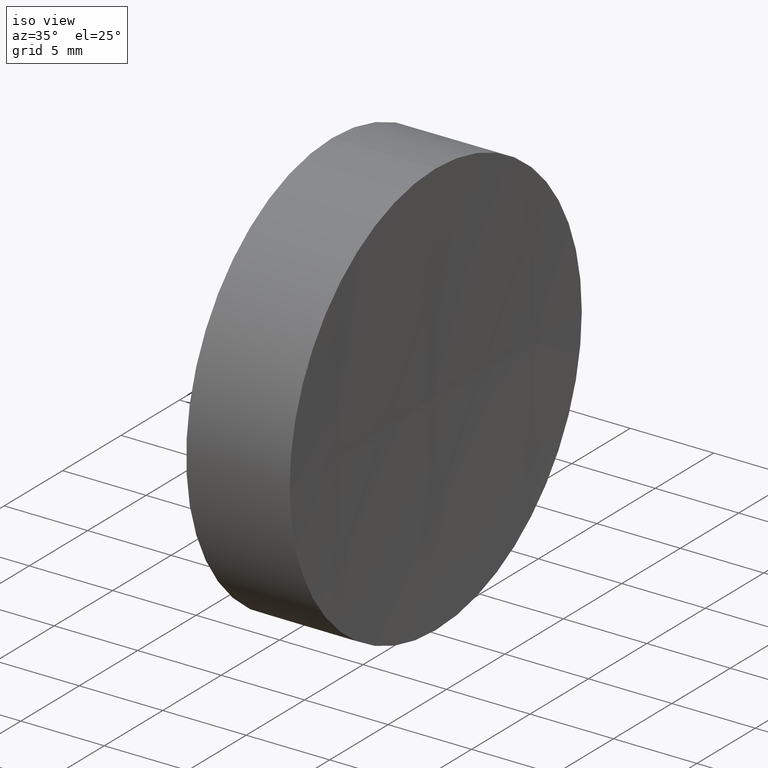
[diagram: clean part render]
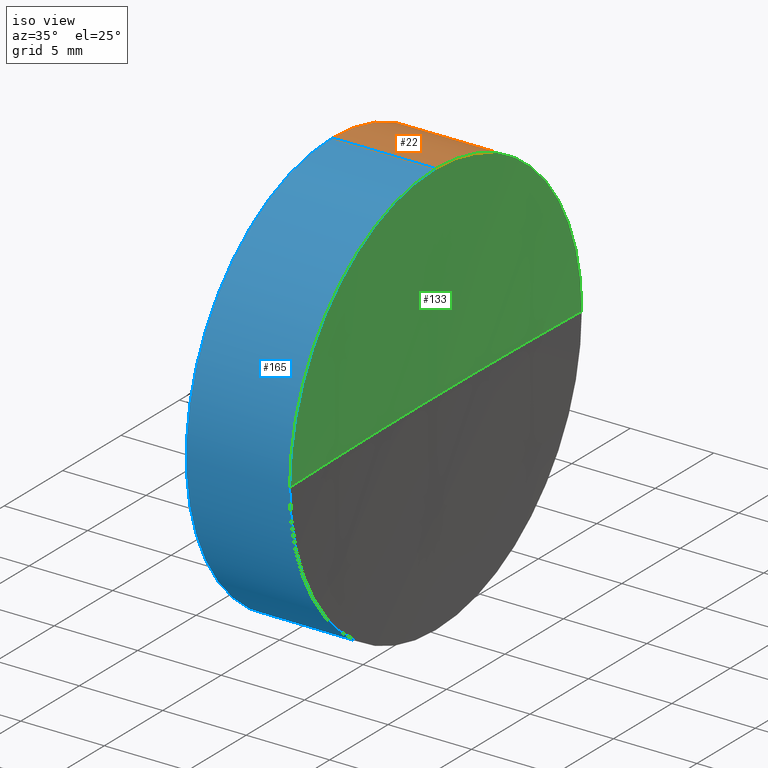
[diagram: same view with three faces highlighted in distinct colors, each labeled with its STEP entity id]
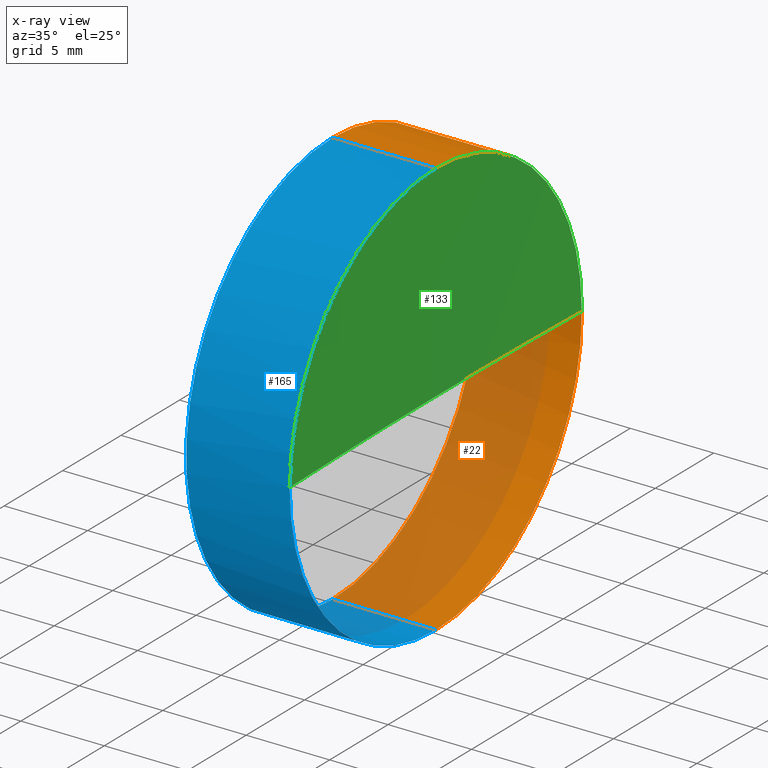
[diagram: x-ray of the same camera — body ghosted, the three highlighted faces saturated]
A machine part, iso view with three faces highlighted in distinct colors.
The next image is the same camera in x-ray (body ghosted, the three faces saturated) — at least one of them is partly hidden behind the body in this view.
Their STEP definitions:

[orange] entity #22 — the highlighted cylindrical surface (partial cylindrical patch) has radius 12.5 mm, axis along (-1, -0, -0).
#6 = CARTESIAN_POINT ( 'NONE',  ( 108.9851430021651000, 69.37802112337243400, -12.50000000000001100 ) ) ;
#7 = CARTESIAN_POINT ( 'NONE',  ( 108.9851430021651000, 69.37802112337243400, 12.50000000000001100 ) ) ;
#9 = DIRECTION ( 'NONE',  ( -1.000000000000000000, -0.0000000000000000000, -0.0000000000000000000 ) ) ;
#10 = CARTESIAN_POINT ( 'NONE',  ( 121.2880157473268800, 69.37802112337243400, -12.50000000000002500 ) ) ;
#17 = DIRECTION ( 'NONE',  ( -1.000000000000000000, -0.0000000000000000000, -0.0000000000000000000 ) ) ;
#19 = VECTOR ( 'NONE', #17, 1000.000000000000000 ) ;
#20 = ORIENTED_EDGE ( 'NONE', *, *, #131, .F. ) ;
#21 = ORIENTED_EDGE ( 'NONE', *, *, #119, .T. ) ;
#22 = ADVANCED_FACE ( 'NONE', ( #28 ), #39, .T. ) ;
#28 = FACE_OUTER_BOUND ( 'NONE', #77, .T. ) ;
#29 = DIRECTION ( 'NONE',  ( 0.0000000000000000000, 0.0000000000000000000, 1.000000000000000000 ) ) ;
#39 = CYLINDRICAL_SURFACE ( 'NONE', #162, 12.50000000000001100 ) ;
#42 = AXIS2_PLACEMENT_3D ( 'NONE', #156, #71, #129 ) ;
#48 = CARTESIAN_POINT ( 'NONE',  ( 115.0926555349195200, 69.37802112337243400, 12.49999999999999600 ) ) ;
#50 = CARTESIAN_POINT ( 'NONE',  ( 108.9851430021651000, 69.37802112337243400, 0.0000000000000000000 ) ) ;
#53 = EDGE_CURVE ( 'NONE', #180, #68, #185, .T. ) ;
#54 = CIRCLE ( 'NONE', #42, 12.50000000000002500 ) ;
#56 = ORIENTED_EDGE ( 'NONE', *, *, #161, .F. ) ;
#57 = DIRECTION ( 'NONE',  ( 0.0000000000000000000, 0.0000000000000000000, 1.000000000000000000 ) ) ;
#59 = AXIS2_PLACEMENT_3D ( 'NONE', #69, #126, #29 ) ;
#68 = VERTEX_POINT ( 'NONE', #81 ) ;
#69 = CARTESIAN_POINT ( 'NONE',  ( 115.0926555349195200, 69.37802112337243400, 0.0000000000000000000 ) ) ;
#71 = DIRECTION ( 'NONE',  ( -1.000000000000000000, -0.0000000000000000000, -0.0000000000000000000 ) ) ;
#74 = ORIENTED_EDGE ( 'NONE', *, *, #53, .T. ) ;
#77 = EDGE_LOOP ( 'NONE', ( #96, #74, #56, #20, #21 ) ) ;
#80 = VERTEX_POINT ( 'NONE', #124 ) ;
#81 = CARTESIAN_POINT ( 'NONE',  ( 115.0926555349195200, 69.37802112337243400, -12.49999999999999600 ) ) ;
#88 = DIRECTION ( 'NONE',  ( -1.000000000000000000, -0.0000000000000000000, -0.0000000000000000000 ) ) ;
#93 = CARTESIAN_POINT ( 'NONE',  ( 121.2880157473269200, 81.87802112337300300, 1.530808498934246700E-015 ) ) ;
#95 = CIRCLE ( 'NONE', #170, 12.50000000000002500 ) ;
#96 = ORIENTED_EDGE ( 'NONE', *, *, #155, .T. ) ;
#98 = CARTESIAN_POINT ( 'NONE',  ( 121.2880157473268800, 69.37802112337243400, 0.0000000000000000000 ) ) ;
#117 = DIRECTION ( 'NONE',  ( 0.0000000000000000000, 0.0000000000000000000, 1.000000000000000000 ) ) ;
#119 = EDGE_CURVE ( 'NONE', #80, #186, #95, .T. ) ;
#124 = CARTESIAN_POINT ( 'NONE',  ( 121.2880157473268800, 69.37802112337243400, 12.50000000000002500 ) ) ;
#126 = DIRECTION ( 'NONE',  ( -1.000000000000000000, -0.0000000000000000000, -0.0000000000000000000 ) ) ;
#127 = DIRECTION ( 'NONE',  ( -1.000000000000000000, -0.0000000000000000000, -0.0000000000000000000 ) ) ;
#129 = DIRECTION ( 'NONE',  ( 0.0000000000000000000, 0.0000000000000000000, 1.000000000000000000 ) ) ;
#131 = EDGE_CURVE ( 'NONE', #80, #136, #167, .T. ) ;
#135 = CIRCLE ( 'NONE', #59, 12.49999999999999600 ) ;
#136 = VERTEX_POINT ( 'NONE', #48 ) ;
#155 = EDGE_CURVE ( 'NONE', #186, #180, #54, .T. ) ;
#156 = CARTESIAN_POINT ( 'NONE',  ( 121.2880157473268800, 69.37802112337243400, 0.0000000000000000000 ) ) ;
#161 = EDGE_CURVE ( 'NONE', #136, #68, #135, .T. ) ;
#162 = AXIS2_PLACEMENT_3D ( 'NONE', #50, #9, #117 ) ;
#167 = LINE ( 'NONE', #7, #19 ) ;
#170 = AXIS2_PLACEMENT_3D ( 'NONE', #98, #88, #57 ) ;
#179 = VECTOR ( 'NONE', #127, 1000.000000000000000 ) ;
#180 = VERTEX_POINT ( 'NONE', #10 ) ;
#185 = LINE ( 'NONE', #6, #179 ) ;
#186 = VERTEX_POINT ( 'NONE', #93 ) ;

[blue] entity #165 — the highlighted cylindrical surface (partial cylindrical patch) has radius 12.5 mm, axis along (-1, -0, -0).
#1 = ORIENTED_EDGE ( 'NONE', *, *, #164, .T. ) ;
#4 = CARTESIAN_POINT ( 'NONE',  ( 121.2880157473268800, 69.37802112337243400, 0.0000000000000000000 ) ) ;
#6 = CARTESIAN_POINT ( 'NONE',  ( 108.9851430021651000, 69.37802112337243400, -12.50000000000001100 ) ) ;
#7 = CARTESIAN_POINT ( 'NONE',  ( 108.9851430021651000, 69.37802112337243400, 12.50000000000001100 ) ) ;
#8 = AXIS2_PLACEMENT_3D ( 'NONE', #123, #171, #175 ) ;
#10 = CARTESIAN_POINT ( 'NONE',  ( 121.2880157473268800, 69.37802112337243400, -12.50000000000002500 ) ) ;
#13 = AXIS2_PLACEMENT_3D ( 'NONE', #73, #41, #141 ) ;
#14 = CARTESIAN_POINT ( 'NONE',  ( 121.2880157473269200, 56.87802112337199400, 0.0000000000000000000 ) ) ;
#17 = DIRECTION ( 'NONE',  ( -1.000000000000000000, -0.0000000000000000000, -0.0000000000000000000 ) ) ;
#19 = VECTOR ( 'NONE', #17, 1000.000000000000000 ) ;
#26 = EDGE_CURVE ( 'NONE', #68, #136, #142, .T. ) ;
#31 = ORIENTED_EDGE ( 'NONE', *, *, #26, .F. ) ;
#41 = DIRECTION ( 'NONE',  ( -1.000000000000000000, -0.0000000000000000000, -0.0000000000000000000 ) ) ;
#48 = CARTESIAN_POINT ( 'NONE',  ( 115.0926555349195200, 69.37802112337243400, 12.49999999999999600 ) ) ;
#53 = EDGE_CURVE ( 'NONE', #180, #68, #185, .T. ) ;
#55 = DIRECTION ( 'NONE',  ( 0.0000000000000000000, 0.0000000000000000000, 1.000000000000000000 ) ) ;
#58 = CARTESIAN_POINT ( 'NONE',  ( 108.9851430021651000, 69.37802112337243400, 0.0000000000000000000 ) ) ;
#62 = FACE_OUTER_BOUND ( 'NONE', #112, .T. ) ;
#65 = AXIS2_PLACEMENT_3D ( 'NONE', #58, #85, #55 ) ;
#66 = ORIENTED_EDGE ( 'NONE', *, *, #122, .T. ) ;
#68 = VERTEX_POINT ( 'NONE', #81 ) ;
#70 = AXIS2_PLACEMENT_3D ( 'NONE', #4, #75, #101 ) ;
#73 = CARTESIAN_POINT ( 'NONE',  ( 121.2880157473268800, 69.37802112337243400, 0.0000000000000000000 ) ) ;
#75 = DIRECTION ( 'NONE',  ( -1.000000000000000000, -0.0000000000000000000, -0.0000000000000000000 ) ) ;
#80 = VERTEX_POINT ( 'NONE', #124 ) ;
#81 = CARTESIAN_POINT ( 'NONE',  ( 115.0926555349195200, 69.37802112337243400, -12.49999999999999600 ) ) ;
#85 = DIRECTION ( 'NONE',  ( -1.000000000000000000, -0.0000000000000000000, -0.0000000000000000000 ) ) ;
#101 = DIRECTION ( 'NONE',  ( 0.0000000000000000000, 0.0000000000000000000, 1.000000000000000000 ) ) ;
#105 = CIRCLE ( 'NONE', #13, 12.50000000000002500 ) ;
#112 = EDGE_LOOP ( 'NONE', ( #140, #1, #66, #152, #31 ) ) ;
#122 = EDGE_CURVE ( 'NONE', #138, #80, #105, .T. ) ;
#123 = CARTESIAN_POINT ( 'NONE',  ( 115.0926555349195200, 69.37802112337243400, 0.0000000000000000000 ) ) ;
#124 = CARTESIAN_POINT ( 'NONE',  ( 121.2880157473268800, 69.37802112337243400, 12.50000000000002500 ) ) ;
#127 = DIRECTION ( 'NONE',  ( -1.000000000000000000, -0.0000000000000000000, -0.0000000000000000000 ) ) ;
#131 = EDGE_CURVE ( 'NONE', #80, #136, #167, .T. ) ;
#136 = VERTEX_POINT ( 'NONE', #48 ) ;
#138 = VERTEX_POINT ( 'NONE', #14 ) ;
#139 = CIRCLE ( 'NONE', #70, 12.50000000000002500 ) ;
#140 = ORIENTED_EDGE ( 'NONE', *, *, #53, .F. ) ;
#141 = DIRECTION ( 'NONE',  ( 0.0000000000000000000, 0.0000000000000000000, 1.000000000000000000 ) ) ;
#142 = CIRCLE ( 'NONE', #8, 12.49999999999999600 ) ;
#152 = ORIENTED_EDGE ( 'NONE', *, *, #131, .T. ) ;
#164 = EDGE_CURVE ( 'NONE', #180, #138, #139, .T. ) ;
#165 = ADVANCED_FACE ( 'NONE', ( #62 ), #169, .T. ) ;
#167 = LINE ( 'NONE', #7, #19 ) ;
#169 = CYLINDRICAL_SURFACE ( 'NONE', #65, 12.50000000000001100 ) ;
#171 = DIRECTION ( 'NONE',  ( -1.000000000000000000, -0.0000000000000000000, -0.0000000000000000000 ) ) ;
#175 = DIRECTION ( 'NONE',  ( 0.0000000000000000000, 0.0000000000000000000, 1.000000000000000000 ) ) ;
#179 = VECTOR ( 'NONE', #127, 1000.000000000000000 ) ;
#180 = VERTEX_POINT ( 'NONE', #10 ) ;
#185 = LINE ( 'NONE', #6, #179 ) ;

[green] entity #133 — the highlighted spherical surface has radius 400 mm.
#13 = AXIS2_PLACEMENT_3D ( 'NONE', #73, #41, #141 ) ;
#14 = CARTESIAN_POINT ( 'NONE',  ( 121.2880157473269200, 56.87802112337199400, 0.0000000000000000000 ) ) ;
#27 = CIRCLE ( 'NONE', #132, 400.0000000000000000 ) ;
#30 = DIRECTION ( 'NONE',  ( 0.0000000000000000000, 0.0000000000000000000, 1.000000000000000000 ) ) ;
#33 = CARTESIAN_POINT ( 'NONE',  ( 521.0926555403137900, 69.37802112337254800, 0.0000000000000000000 ) ) ;
#41 = DIRECTION ( 'NONE',  ( -1.000000000000000000, -0.0000000000000000000, -0.0000000000000000000 ) ) ;
#44 = DIRECTION ( 'NONE',  ( -1.000000000000000000, 0.0000000000000000000, 0.0000000000000000000 ) ) ;
#47 = EDGE_CURVE ( 'NONE', #138, #60, #78, .T. ) ;
#51 = AXIS2_PLACEMENT_3D ( 'NONE', #33, #30, #143 ) ;
#52 = ORIENTED_EDGE ( 'NONE', *, *, #47, .T. ) ;
#57 = DIRECTION ( 'NONE',  ( 0.0000000000000000000, 0.0000000000000000000, 1.000000000000000000 ) ) ;
#60 = VERTEX_POINT ( 'NONE', #146 ) ;
#73 = CARTESIAN_POINT ( 'NONE',  ( 121.2880157473268800, 69.37802112337243400, 0.0000000000000000000 ) ) ;
#78 = CIRCLE ( 'NONE', #184, 400.0000000000000000 ) ;
#80 = VERTEX_POINT ( 'NONE', #124 ) ;
#82 = DIRECTION ( 'NONE',  ( 0.0000000000000000000, -1.224646799147353200E-016, 1.000000000000000000 ) ) ;
#84 = ORIENTED_EDGE ( 'NONE', *, *, #122, .F. ) ;
#88 = DIRECTION ( 'NONE',  ( -1.000000000000000000, -0.0000000000000000000, -0.0000000000000000000 ) ) ;
#90 = CARTESIAN_POINT ( 'NONE',  ( 521.0926555403137900, 69.37802112337254800, 0.0000000000000000000 ) ) ;
#93 = CARTESIAN_POINT ( 'NONE',  ( 121.2880157473269200, 81.87802112337300300, 1.530808498934246700E-015 ) ) ;
#95 = CIRCLE ( 'NONE', #170, 12.50000000000002500 ) ;
#98 = CARTESIAN_POINT ( 'NONE',  ( 121.2880157473268800, 69.37802112337243400, 0.0000000000000000000 ) ) ;
#105 = CIRCLE ( 'NONE', #13, 12.50000000000002500 ) ;
#110 = EDGE_LOOP ( 'NONE', ( #150, #168, #84, #52 ) ) ;
#116 = DIRECTION ( 'NONE',  ( 0.0000000000000000000, 0.0000000000000000000, -1.000000000000000000 ) ) ;
#119 = EDGE_CURVE ( 'NONE', #80, #186, #95, .T. ) ;
#122 = EDGE_CURVE ( 'NONE', #138, #80, #105, .T. ) ;
#124 = CARTESIAN_POINT ( 'NONE',  ( 121.2880157473268800, 69.37802112337243400, 12.50000000000002500 ) ) ;
#132 = AXIS2_PLACEMENT_3D ( 'NONE', #166, #82, #182 ) ;
#133 = ADVANCED_FACE ( 'NONE', ( #183 ), #177, .F. ) ;
#138 = VERTEX_POINT ( 'NONE', #14 ) ;
#141 = DIRECTION ( 'NONE',  ( 0.0000000000000000000, 0.0000000000000000000, 1.000000000000000000 ) ) ;
#143 = DIRECTION ( 'NONE',  ( 0.0000000000000000000, -1.000000000000000000, 0.0000000000000000000 ) ) ;
#146 = CARTESIAN_POINT ( 'NONE',  ( 121.0926555403137900, 69.37802112337252000, 0.0000000000000000000 ) ) ;
#150 = ORIENTED_EDGE ( 'NONE', *, *, #176, .F. ) ;
#166 = CARTESIAN_POINT ( 'NONE',  ( 521.0926555403137900, 69.37802112337254800, 0.0000000000000000000 ) ) ;
#168 = ORIENTED_EDGE ( 'NONE', *, *, #119, .F. ) ;
#170 = AXIS2_PLACEMENT_3D ( 'NONE', #98, #88, #57 ) ;
#176 = EDGE_CURVE ( 'NONE', #186, #60, #27, .T. ) ;
#177 = SPHERICAL_SURFACE ( 'NONE', #51, 400.0000000000000000 ) ;
#182 = DIRECTION ( 'NONE',  ( 0.0000000000000000000, -1.000000000000000000, -1.224646799147353200E-016 ) ) ;
#183 = FACE_OUTER_BOUND ( 'NONE', #110, .T. ) ;
#184 = AXIS2_PLACEMENT_3D ( 'NONE', #90, #116, #44 ) ;
#186 = VERTEX_POINT ( 'NONE', #93 ) ;